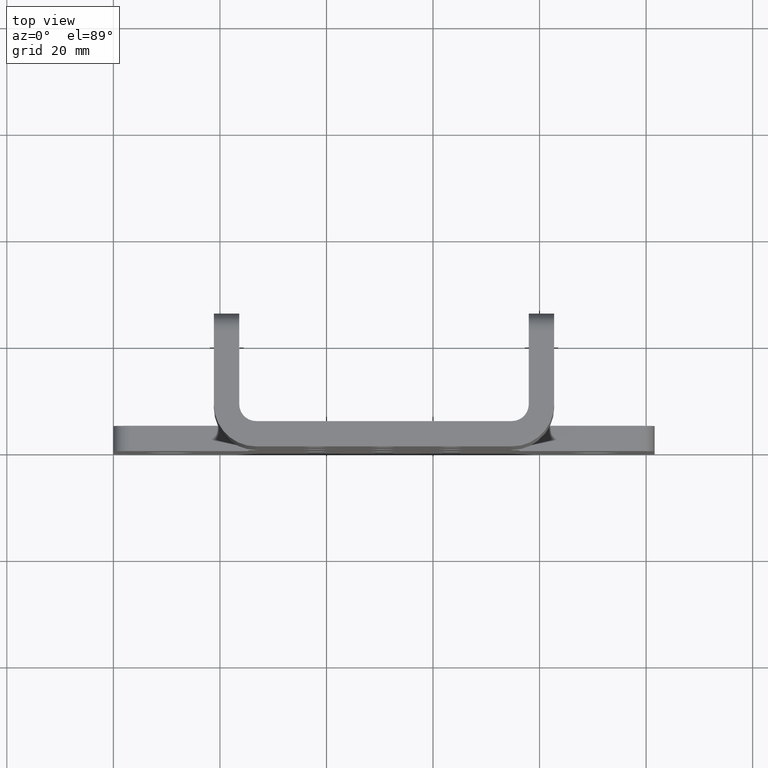
[diagram: clean part render]
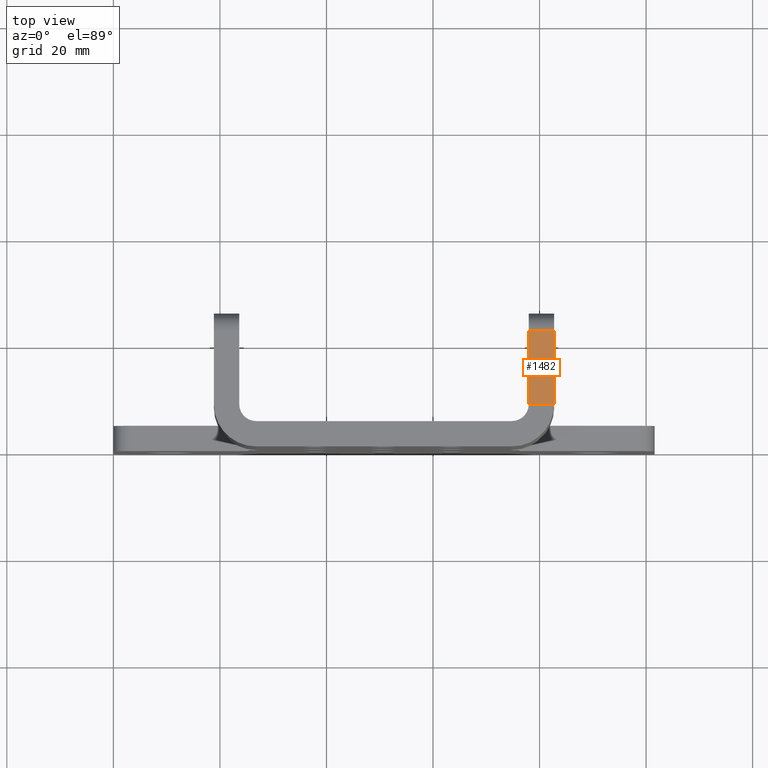
[diagram: same view with one face highlighted and labeled with its STEP entity id]
A machine part, top view. The second image highlights one B-rep face of the part: STEP entity #1482.
In plain terms, the highlighted planar face has unit normal (0, 0, -1).
Its self-contained STEP definition (entity closure, byte-faithful):
#7 = ORIENTED_EDGE ( 'NONE', *, *, #1524, .T. ) ;
#46 = LINE ( 'NONE', #1111, #1219 ) ;
#166 = DIRECTION ( 'NONE',  ( -1.000000000000000000, 3.491481338843134539E-15, 0.0000000000000000000 ) ) ;
#193 = CARTESIAN_POINT ( 'NONE',  ( 3.257500000000002061, 0.8589999999999997637, 1.999999999999999778 ) ) ;
#209 = DIRECTION ( 'NONE',  ( 0.0000000000000000000, 0.0000000000000000000, -1.000000000000000000 ) ) ;
#235 = DIRECTION ( 'NONE',  ( 1.000000000000000000, -3.429815434606731363E-15, -0.0000000000000000000 ) ) ;
#237 = CARTESIAN_POINT ( 'NONE',  ( 3.257499999999999840, 0.1874999999999993616, 1.999999999999999778 ) ) ;
#242 = ORIENTED_EDGE ( 'NONE', *, *, #1012, .F. ) ;
#281 = VERTEX_POINT ( 'NONE', #342 ) ;
#332 = PLANE ( 'NONE',  #443 ) ;
#342 = CARTESIAN_POINT ( 'NONE',  ( 3.257500000000000284, 0.3124999999999987788, 1.999999999999999778 ) ) ;
#359 = ORIENTED_EDGE ( 'NONE', *, *, #1766, .T. ) ;
#361 = LINE ( 'NONE', #876, #1787 ) ;
#443 = AXIS2_PLACEMENT_3D ( 'NONE', #237, #209, #717 ) ;
#444 = CARTESIAN_POINT ( 'NONE',  ( 3.070000000000000284, 0.3124999999999994449, 1.999999999999999778 ) ) ;
#478 = VECTOR ( 'NONE', #235, 39.37007874015748143 ) ;
#582 = CARTESIAN_POINT ( 'NONE',  ( 3.257500000000002061, 0.8589999999999997637, 1.999999999999999778 ) ) ;
#717 = DIRECTION ( 'NONE',  ( -1.000000000000000000, 0.0000000000000000000, -0.0000000000000000000 ) ) ;
#801 = FACE_OUTER_BOUND ( 'NONE', #1418, .T. ) ;
#849 = LINE ( 'NONE', #193, #1578 ) ;
#876 = CARTESIAN_POINT ( 'NONE',  ( 3.257499999999999396, -1.072973559019035598E-14, 1.999999999999999778 ) ) ;
#882 = VERTEX_POINT ( 'NONE', #1394 ) ;
#1012 = EDGE_CURVE ( 'NONE', #1165, #281, #361, .T. ) ;
#1075 = CARTESIAN_POINT ( 'NONE',  ( 3.257500000000000284, 0.3124999999999987788, 1.999999999999999778 ) ) ;
#1111 = CARTESIAN_POINT ( 'NONE',  ( 3.069999999999999840, 0.1875000000000000278, 1.999999999999999778 ) ) ;
#1140 = DIRECTION ( 'NONE',  ( -3.429815434606730968E-15, -1.000000000000000000, 0.0000000000000000000 ) ) ;
#1161 = EDGE_CURVE ( 'NONE', #1226, #281, #1705, .T. ) ;
#1165 = VERTEX_POINT ( 'NONE', #582 ) ;
#1168 = ORIENTED_EDGE ( 'NONE', *, *, #1161, .T. ) ;
#1219 = VECTOR ( 'NONE', #1662, 39.37007874015748143 ) ;
#1226 = VERTEX_POINT ( 'NONE', #444 ) ;
#1394 = CARTESIAN_POINT ( 'NONE',  ( 3.070000000000002061, 0.8590000000000004299, 1.999999999999999778 ) ) ;
#1418 = EDGE_LOOP ( 'NONE', ( #242, #359, #7, #1168 ) ) ;
#1482 = ADVANCED_FACE ( 'NONE', ( #801 ), #332, .F. ) ;
#1524 = EDGE_CURVE ( 'NONE', #882, #1226, #46, .T. ) ;
#1578 = VECTOR ( 'NONE', #166, 39.37007874015748143 ) ;
#1662 = DIRECTION ( 'NONE',  ( -3.429815434606730968E-15, -1.000000000000000000, -0.0000000000000000000 ) ) ;
#1705 = LINE ( 'NONE', #1075, #478 ) ;
#1766 = EDGE_CURVE ( 'NONE', #1165, #882, #849, .T. ) ;
#1787 = VECTOR ( 'NONE', #1140, 39.37007874015748143 ) ;